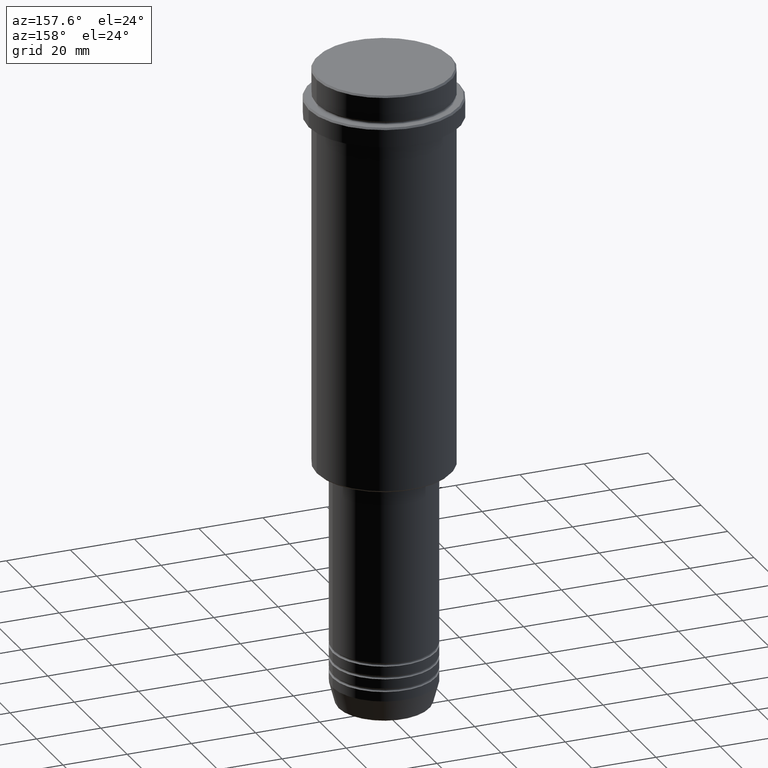
[diagram: clean part render]
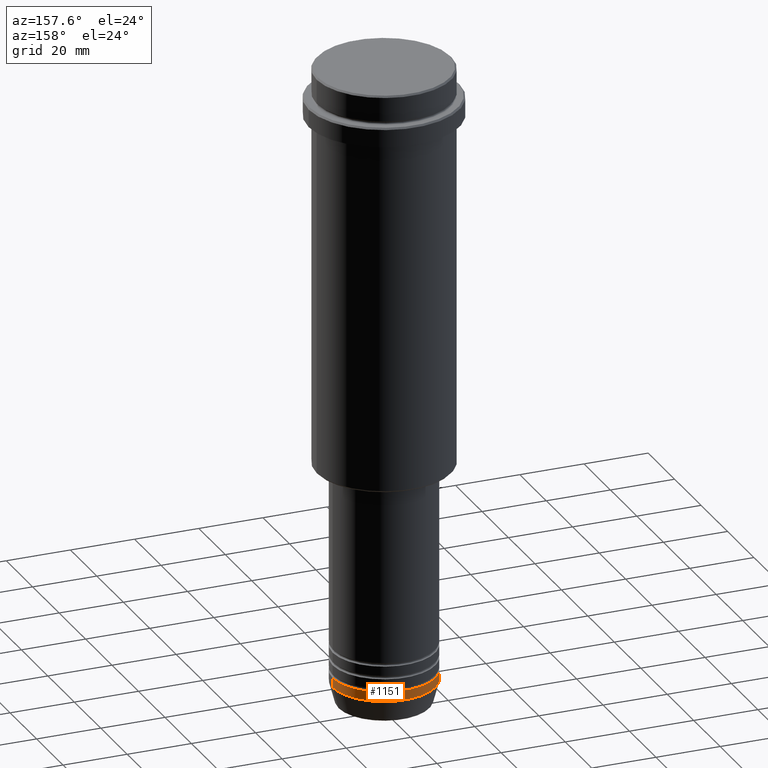
[diagram: same view with one face highlighted and labeled with its STEP entity id]
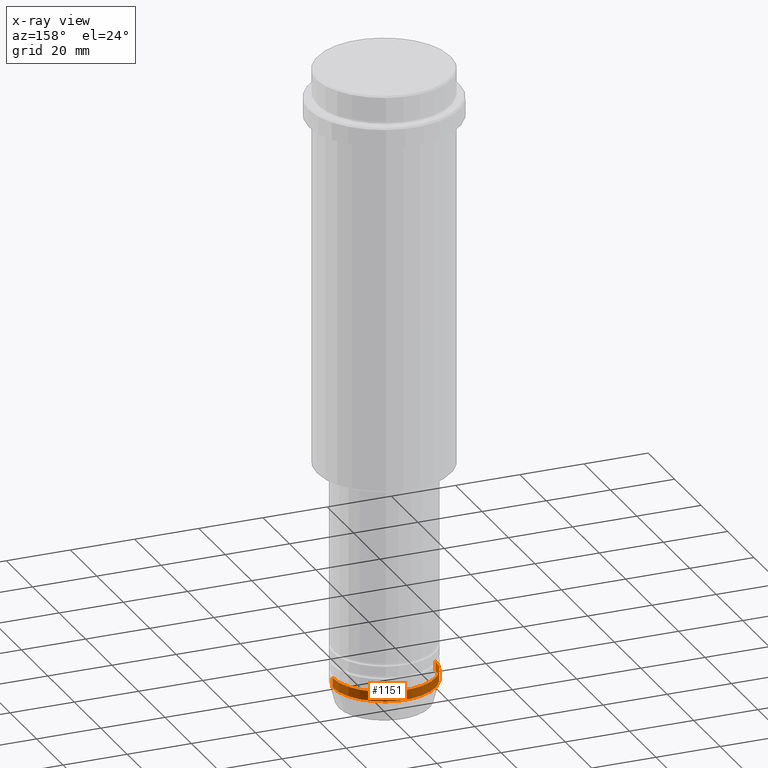
[diagram: x-ray of the same camera — body ghosted, the highlighted face saturated]
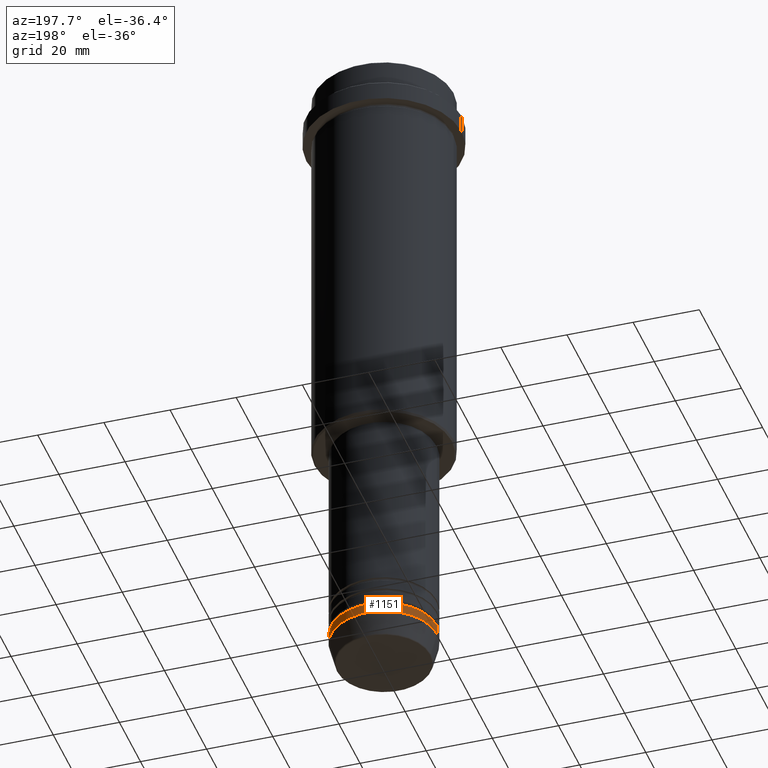
[diagram: same view with one face highlighted and labeled with its STEP entity id]
A machine part, auxiliary view. The second image highlights one B-rep face of the part: STEP entity #1151.
The next image is the same camera in x-ray: the body ghosted, the highlighted face saturated — about 0% of this face is hidden behind the body in this view.
A second angle (auxiliary view) of the same face is appended — the face is thin or edge-on in the first view.
In plain terms, the highlighted cylindrical surface (partial cylindrical patch) has radius 16 mm, axis along (-0, -0, 1).
Its self-contained STEP definition (entity closure, byte-faithful):
#70 = LINE ( 'NONE', #1395, #1404 ) ;
#115 = CYLINDRICAL_SURFACE ( 'NONE', #968, 16.00000000000000000 ) ;
#189 = VERTEX_POINT ( 'NONE', #613 ) ;
#227 = CARTESIAN_POINT ( 'NONE',  ( 16.00000000000000000, 0.000000000000000000, 0.000000000000000000 ) ) ;
#265 = VERTEX_POINT ( 'NONE', #922 ) ;
#276 = CIRCLE ( 'NONE', #521, 16.00000000000000000 ) ;
#324 = ORIENTED_EDGE ( 'NONE', *, *, #1142, .F. ) ;
#342 = CIRCLE ( 'NONE', #1341, 16.00000000000000000 ) ;
#383 = CARTESIAN_POINT ( 'NONE',  ( 0.000000000000000000, 0.000000000000000000, -190.0000000000000000 ) ) ;
#521 = AXIS2_PLACEMENT_3D ( 'NONE', #528, #976, #1113 ) ;
#528 = CARTESIAN_POINT ( 'NONE',  ( 0.000000000000000000, 0.000000000000000000, -193.0000000000000000 ) ) ;
#536 = EDGE_CURVE ( 'NONE', #189, #1043, #70, .T. ) ;
#557 = LINE ( 'NONE', #227, #919 ) ;
#596 = DIRECTION ( 'NONE',  ( 1.000000000000000000, 0.000000000000000000, 0.000000000000000000 ) ) ;
#613 = CARTESIAN_POINT ( 'NONE',  ( -16.00000000000000000, 1.959434878635765131E-15, -193.0000000000000000 ) ) ;
#651 = ORIENTED_EDGE ( 'NONE', *, *, #536, .T. ) ;
#664 = DIRECTION ( 'NONE',  ( -0.000000000000000000, -0.000000000000000000, 1.000000000000000000 ) ) ;
#738 = ORIENTED_EDGE ( 'NONE', *, *, #952, .T. ) ;
#762 = FACE_OUTER_BOUND ( 'NONE', #856, .T. ) ;
#825 = CARTESIAN_POINT ( 'NONE',  ( -16.00000000000000000, 1.959434878635765131E-15, -190.0000000000000000 ) ) ;
#846 = VERTEX_POINT ( 'NONE', #1071 ) ;
#856 = EDGE_LOOP ( 'NONE', ( #738, #651, #1253, #324 ) ) ;
#888 = DIRECTION ( 'NONE',  ( -0.000000000000000000, -0.000000000000000000, 1.000000000000000000 ) ) ;
#919 = VECTOR ( 'NONE', #664, 1000.000000000000000 ) ;
#922 = CARTESIAN_POINT ( 'NONE',  ( 16.00000000000000000, 0.000000000000000000, -193.0000000000000000 ) ) ;
#952 = EDGE_CURVE ( 'NONE', #265, #189, #276, .T. ) ;
#968 = AXIS2_PLACEMENT_3D ( 'NONE', #999, #888, #1120 ) ;
#976 = DIRECTION ( 'NONE',  ( -0.000000000000000000, -0.000000000000000000, 1.000000000000000000 ) ) ;
#999 = CARTESIAN_POINT ( 'NONE',  ( 0.000000000000000000, 0.000000000000000000, 0.000000000000000000 ) ) ;
#1043 = VERTEX_POINT ( 'NONE', #825 ) ;
#1071 = CARTESIAN_POINT ( 'NONE',  ( 16.00000000000000000, 0.000000000000000000, -190.0000000000000000 ) ) ;
#1113 = DIRECTION ( 'NONE',  ( 1.000000000000000000, 0.000000000000000000, 0.000000000000000000 ) ) ;
#1120 = DIRECTION ( 'NONE',  ( 1.000000000000000000, 0.000000000000000000, 0.000000000000000000 ) ) ;
#1142 = EDGE_CURVE ( 'NONE', #265, #846, #557, .T. ) ;
#1151 = ADVANCED_FACE ( 'NONE', ( #762 ), #115, .T. ) ;
#1222 = EDGE_CURVE ( 'NONE', #846, #1043, #342, .T. ) ;
#1253 = ORIENTED_EDGE ( 'NONE', *, *, #1222, .F. ) ;
#1274 = DIRECTION ( 'NONE',  ( -0.000000000000000000, -0.000000000000000000, 1.000000000000000000 ) ) ;
#1291 = DIRECTION ( 'NONE',  ( -0.000000000000000000, -0.000000000000000000, 1.000000000000000000 ) ) ;
#1341 = AXIS2_PLACEMENT_3D ( 'NONE', #383, #1274, #596 ) ;
#1395 = CARTESIAN_POINT ( 'NONE',  ( -16.00000000000000000, 1.959434878635765131E-15, 0.000000000000000000 ) ) ;
#1404 = VECTOR ( 'NONE', #1291, 1000.000000000000000 ) ;